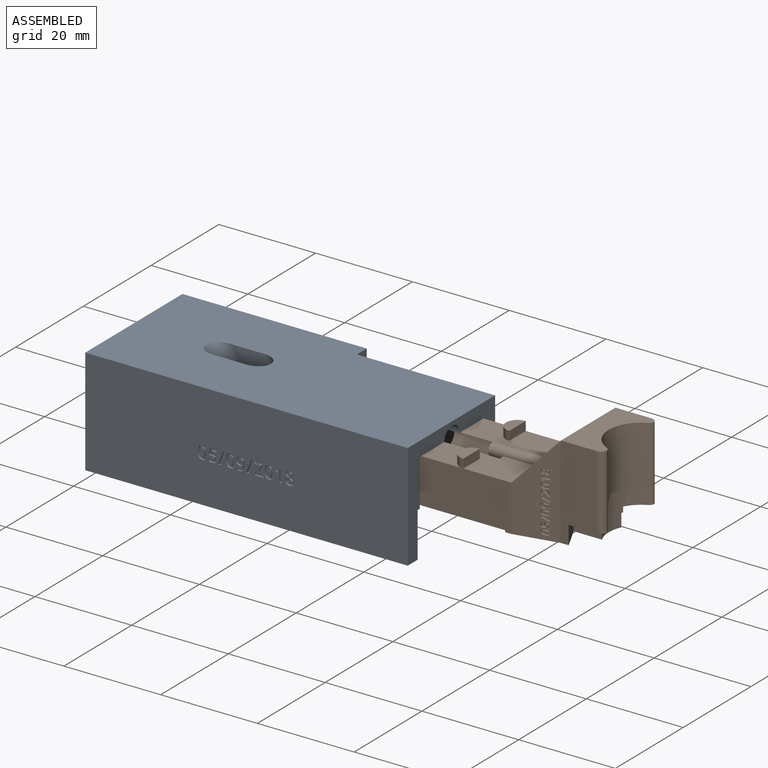
[diagram: assembled view]
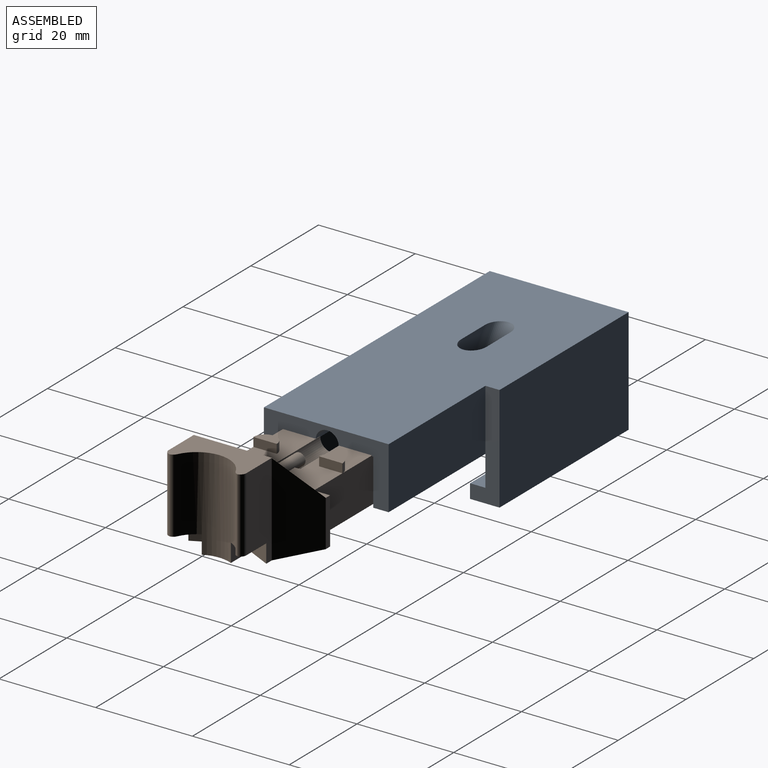
[diagram: assembled view, second angle]
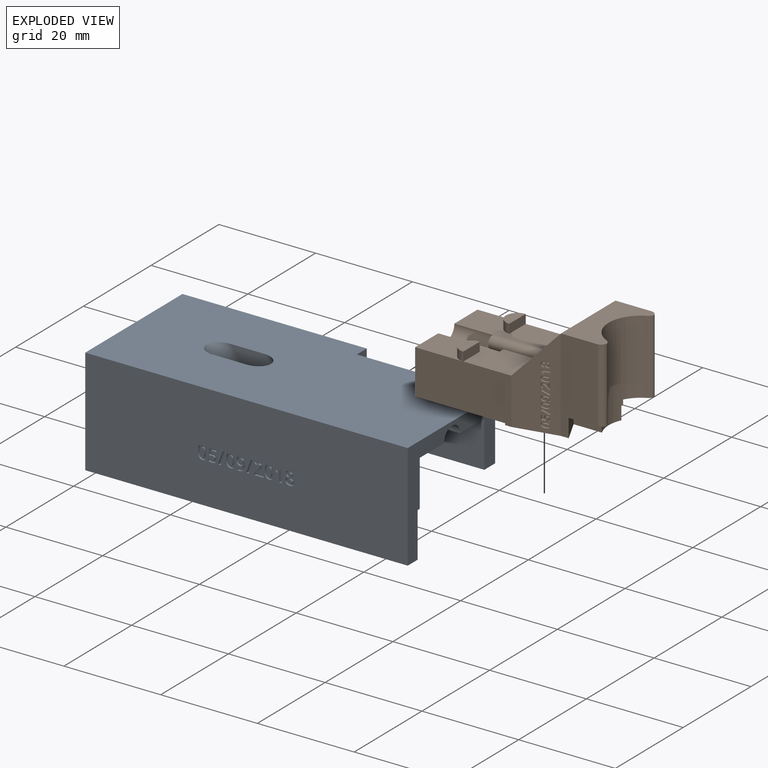
[diagram: exploded view]
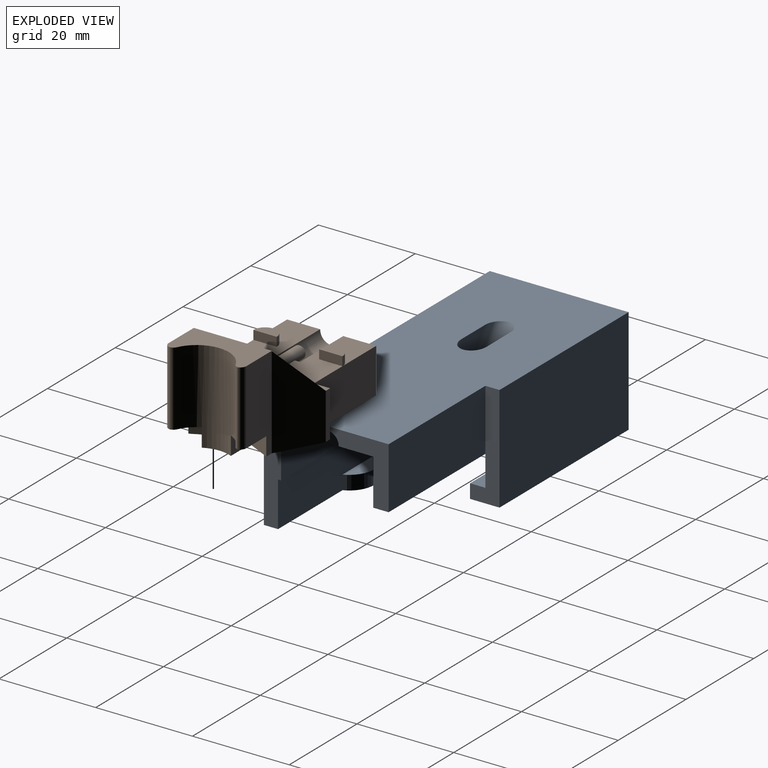
[diagram: exploded view, second angle]
ASSEMBLY  parts=2 mates=3
PART A: 219 faces, bbox 66.7x28.7x23.5 mm
  f0: plane 42.92x2.92mm, normal (0,1,0), area 125.4mm2, adj f1,f4,f32,f218
  f1: plane 47.63x3.18mm, normal (0,0,1), area 147.1mm2, adj f0,f4,f10,f218
  f2: plane 66.68x21.97mm, normal (0,-1,0), area 1434.3mm2, adj f4,f5,f18,f32,f35,f36,f37,f38
  f3: plane 21.97x6.1mm, normal (1,0,0), area 73.5mm2, adj f5,f6,f11,f12,f17,f33,f34
  f4: plane 28.7x21.97mm, normal (-1,0,0), area 437.2mm2, adj f0,f1,f2,f5,f6,f9,f10,f11
  f5: plane 66.68x28.7mm, normal (0,0,1), area 1767.1mm2, adj f2,f3,f4,f13,f14,f15,f16,f17
  f6: plane 38.1x2.92mm, normal (0,-1,0), area 111.3mm2, adj f3,f4,f12,f34
  f7: plane 28.58x8.26mm, normal (0,0,-1), area 89.9mm2, adj f18,f19,f21,f25,f26,f28,f29,f30
  f8: plane 28.58x8.26mm, normal (0,0,-1), area 89.9mm2, adj f18,f20,f21,f22,f23,f28,f29,f30
  f9: plane 66.68x22.86mm, normal (0,0,-1), area 916.6mm2, adj f4,f10,f11,f13,f14,f15,f16,f17
  f10: plane 66.68x9.27mm, normal (0,1,0), area 479mm2, adj f1,f4,f9,f18,f32,f218
  f11: plane 38.1x6.35mm, normal (0,-1,0), area 241.9mm2, adj f3,f4,f9,f12
  f12: plane 38.1x3.18mm, normal (0,0,1), area 121mm2, adj f3,f4,f6,f11
  f13: cylinder r=2.63mm len=15.72mm, axis (0.57,0,-0.82), area 128mm2, adj f5,f9,f14,f16
  f14: plane 15.87x12.7mm, normal (0,1,0), area 88.6mm2, adj f5,f9,f13,f15
  f15: cylinder r=2.63mm len=15.72mm, axis (0.57,0,-0.82), area 128mm2, adj f5,f9,f14,f16
  f16: plane 15.87x12.7mm, normal (0,-1,0), area 88.6mm2, adj f5,f9,f13,f15
  f17: plane 28.58x12.7mm, normal (0,1,0), area 362.9mm2, adj f3,f5,f9,f18
  f18: plane 25.78x21.97mm, normal (1,0,0), area 164.1mm2, adj f2,f5,f7,f8,f9,f10,f17,f19
  f19: plane 28.58x11.56mm, normal (0,-1,0), area 321.2mm2, adj f7,f9,f18,f21,f26,f27
  f20: plane 28.58x11.56mm, normal (0,1,0), area 321.2mm2, adj f8,f9,f18,f21,f23,f24
  f21: plane 19.05x11.56mm, normal (1,0,0), area 199.6mm2, adj f7,f8,f9,f19,f20,f22,f24,f25
  f22: plane 24.13x2.03mm, normal (0,-1,0), area 49mm2, adj f8,f21,f23,f24
  f23: plane 5.08x2.03mm, normal (-1,0,0), area 10.3mm2, adj f8,f20,f22,f24
  f24: plane 24.13x5.08mm, normal (0,0,-1), area 122.6mm2, adj f20,f21,f22,f23
  f25: plane 24.13x2.03mm, normal (0,1,0), area 49mm2, adj f7,f21,f26,f27
  f26: plane 5.08x2.03mm, normal (-1,0,0), area 10.3mm2, adj f7,f19,f25,f27
  f27: plane 24.13x5.08mm, normal (0,0,-1), area 122.6mm2, adj f19,f21,f25,f26
  f28: plane 4.76x2.38mm, normal (1,0,0), area 6.4mm2, adj f7,f8,f29,f30
  f29: cylinder r=2.38mm len=21.08mm, axis (1,0,0), area 157.7mm2, adj f7,f8,f18,f28
  f30: cylinder r=1.27mm len=10.67mm, axis (-1,0,0), area 55.2mm2, adj f7,f8,f21,f28,f31
  f31: plane 2.54x2.54mm, normal (1,0,0), area 5.1mm2, adj f30
  f32: plane 66.68x6.1mm, normal (0,0,-1), area 341.8mm2, adj f0,f2,f4,f10,f18,f218
  f33: plane 38.1x21.97mm, normal (0,1,0), area 837.1mm2, adj f3,f4,f5,f34
  f34: plane 38.1x6.1mm, normal (0,0,-1), area 232.3mm2, adj f3,f4,f6,f33
  f35: extruded ~0.62x0.38mm, area 0.3mm2, adj f2,f36,f54,f55
  f36: extruded ~0.38x0.28mm, area 0.1mm2, adj f2,f35,f37,f55
  f37: plane 0.38x0.06mm, normal (0.2,0,-0.98), area 0mm2, adj f2,f36,f38,f55
  f38: plane 0.53x0.38mm, normal (-1,0,0.09), area 0.2mm2, adj f2,f37,f39,f55
  f39: plane 0.96x0.38mm, normal (0,0,1), area 0.4mm2, adj f2,f38,f40,f55
  f40: plane 0.48x0.38mm, normal (-1,0,0), area 0.2mm2, adj f2,f39,f41,f55
  f41: plane 1.45x0.38mm, normal (0,0,-1), area 0.6mm2, adj f2,f40,f42,f55
  f42: plane 1.36x0.38mm, normal (1,0,-0.07), area 0.5mm2, adj f2,f41,f43,f55
  f43: plane 0.38x0.23mm, normal (0.47,0,0.88), area 0.1mm2, adj f2,f42,f44,f55
  f44: extruded ~0.38x0.19mm, area 0.1mm2, adj f2,f43,f45,f55
  f45: extruded ~0.38x0.21mm, area 0.1mm2, adj f2,f44,f46,f55
  f46: extruded ~0.54x0.4mm, area 0.3mm2, adj f2,f45,f47,f55
  f47: extruded ~0.52x0.42mm, area 0.3mm2, adj f2,f46,f48,f55
  f48: extruded ~0.38x0.36mm, area 0.1mm2, adj f2,f47,f49,f55
  f49: extruded ~0.38x0.34mm, area 0.1mm2, adj f2,f48,f50,f55
  f50: plane 0.49x0.38mm, normal (1,0,0), area 0.2mm2, adj f2,f49,f51,f55
  f51: extruded ~0.72x0.38mm, area 0.3mm2, adj f2,f50,f52,f55
  f52: extruded ~0.79x0.38mm, area 0.3mm2, adj f2,f51,f53,f55
  f53: extruded ~0.69x0.38mm, area 0.3mm2, adj f2,f52,f54,f55
  f54: extruded ~0.6x0.38mm, area 0.3mm2, adj f2,f35,f53,f55
  f55: plane 2.71x1.79mm, normal (0,-1,0), area 2.8mm2, adj f35,f36,f37,f38,f39,f40,f41,f42
  f56: extruded ~0.71x0.38mm, area 0.3mm2, adj f57,f71,f72,f213
  f57: extruded ~0.71x0.38mm, area 0.3mm2, adj f56,f58,f72,f213
  f58: extruded ~0.38x0.29mm, area 0.1mm2, adj f57,f59,f72,f213
  f59: extruded ~0.38x0.28mm, area 0.1mm2, adj f58,f60,f72,f213
  f60: extruded ~0.71x0.38mm, area 0.3mm2, adj f59,f61,f72,f213
  f61: extruded ~0.7x0.38mm, area 0.3mm2, adj f60,f62,f72,f213
  f62: extruded ~0.38x0.29mm, area 0.1mm2, adj f61,f71,f72,f213
  f63: extruded ~1.04x0.38mm, area 0.4mm2, adj f2,f64,f70,f72
  f64: extruded ~1.03x0.38mm, area 0.4mm2, adj f2,f63,f65,f72
  f65: extruded ~0.7x0.38mm, area 0.3mm2, adj f2,f64,f66,f72
  f66: extruded ~0.7x0.38mm, area 0.3mm2, adj f2,f65,f67,f72
  f67: extruded ~1.04x0.38mm, area 0.4mm2, adj f2,f66,f68,f72
  f68: extruded ~1.03x0.38mm, area 0.4mm2, adj f2,f67,f69,f72
  f69: extruded ~0.7x0.38mm, area 0.3mm2, adj f2,f68,f70,f72
  f70: extruded ~0.71x0.38mm, area 0.3mm2, adj f2,f63,f69,f72
  f71: extruded ~0.38x0.29mm, area 0.1mm2, adj f56,f62,f72,f213
  f72: plane 2.75x1.87mm, normal (0,-1,0), area 3.1mm2, adj f56,f57,f58,f59,f60,f61,f62,f63
  f73: extruded ~0.38x0.27mm, area 0.1mm2, adj f74,f98,f99,f214
  f74: extruded ~0.38x0.29mm, area 0.1mm2, adj f73,f75,f99,f214
  f75: extruded ~0.38x0.37mm, area 0.1mm2, adj f74,f76,f99,f214
  f76: extruded ~0.38x0.26mm, area 0.1mm2, adj f75,f77,f99,f214
  f77: extruded ~0.38x0.3mm, area 0.1mm2, adj f76,f78,f99,f214
  f78: extruded ~0.38x0.27mm, area 0.1mm2, adj f77,f79,f99,f214
  f79: extruded ~0.38x0.31mm, area 0.1mm2, adj f78,f98,f99,f214
  f80: extruded ~1.18x0.38mm, area 0.5mm2, adj f2,f81,f97,f99
  f81: extruded ~0.63x0.38mm, area 0.2mm2, adj f2,f80,f82,f99
  f82: extruded ~0.4x0.38mm, area 0.2mm2, adj f2,f81,f83,f99
  f83: extruded ~0.52x0.38mm, area 0.2mm2, adj f2,f82,f84,f99
  f84: extruded ~0.67x0.38mm, area 0.3mm2, adj f2,f83,f85,f99
  f85: extruded ~0.68x0.38mm, area 0.3mm2, adj f2,f84,f86,f99
  f86: extruded ~0.62x0.38mm, area 0.3mm2, adj f2,f85,f87,f99
  f87: extruded ~0.55x0.38mm, area 0.2mm2, adj f2,f86,f88,f99
  f88: extruded ~0.38x0.35mm, area 0.1mm2, adj f2,f87,f89,f99
  f89: extruded ~0.38x0.25mm, area 0.1mm2, adj f2,f88,f90,f99
  f90: plane 0.38x0.02mm, normal (0,0,1), area 0mm2, adj f2,f89,f91,f99
  f91: extruded ~0.49x0.38mm, area 0.2mm2, adj f2,f90,f92,f99
  f92: extruded ~0.38x0.28mm, area 0.1mm2, adj f2,f91,f93,f99
  f93: extruded ~0.47x0.38mm, area 0.2mm2, adj f2,f92,f94,f99
  f94: extruded ~0.38x0.32mm, area 0.1mm2, adj f2,f93,f95,f99
  f95: plane 0.45x0.38mm, normal (1,0,0), area 0.2mm2, adj f2,f94,f96,f99
  f96: extruded ~0.38x0.36mm, area 0.1mm2, adj f2,f95,f97,f99
  f97: extruded ~1.01x0.39mm, area 0.4mm2, adj f2,f80,f96,f99
  f98: extruded ~0.38x0.35mm, area 0.1mm2, adj f73,f79,f99,f214
  f99: plane 2.74x1.89mm, normal (0,-1,0), area 3.1mm2, adj f73,f74,f75,f76,f77,f78,f79,f80
  f100: extruded ~0.71x0.38mm, area 0.3mm2, adj f101,f115,f116,f215
  f101: extruded ~0.71x0.38mm, area 0.3mm2, adj f100,f102,f116,f215
  f102: extruded ~0.38x0.29mm, area 0.1mm2, adj f101,f103,f116,f215
  f103: extruded ~0.38x0.28mm, area 0.1mm2, adj f102,f104,f116,f215
  f104: extruded ~0.71x0.38mm, area 0.3mm2, adj f103,f105,f116,f215
  f105: extruded ~0.7x0.38mm, area 0.3mm2, adj f104,f106,f116,f215
  f106: extruded ~0.38x0.29mm, area 0.1mm2, adj f105,f115,f116,f215
  f107: extruded ~1.04x0.38mm, area 0.4mm2, adj f2,f108,f114,f116
  f108: extruded ~1.03x0.38mm, area 0.4mm2, adj f2,f107,f109,f116
  f109: extruded ~0.7x0.38mm, area 0.3mm2, adj f2,f108,f110,f116
  f110: extruded ~0.7x0.38mm, area 0.3mm2, adj f2,f109,f111,f116
  f111: extruded ~1.04x0.38mm, area 0.4mm2, adj f2,f110,f112,f116
  f112: extruded ~1.03x0.38mm, area 0.4mm2, adj f2,f111,f113,f116
  f113: extruded ~0.7x0.38mm, area 0.3mm2, adj f2,f112,f114,f116
  f114: extruded ~0.71x0.38mm, area 0.3mm2, adj f2,f107,f113,f116
  f115: extruded ~0.38x0.29mm, area 0.1mm2, adj f100,f106,f116,f215
  f116: plane 2.75x1.87mm, normal (0,-1,0), area 3.1mm2, adj f100,f101,f102,f103,f104,f105,f106,f107
  f117: extruded ~0.71x0.38mm, area 0.3mm2, adj f118,f132,f133,f216
  f118: extruded ~0.71x0.38mm, area 0.3mm2, adj f117,f119,f133,f216
  f119: extruded ~0.38x0.29mm, area 0.1mm2, adj f118,f120,f133,f216
  f120: extruded ~0.38x0.28mm, area 0.1mm2, adj f119,f121,f133,f216
  f121: extruded ~0.71x0.38mm, area 0.3mm2, adj f120,f122,f133,f216
  f122: extruded ~0.7x0.38mm, area 0.3mm2, adj f121,f123,f133,f216
  f123: extruded ~0.38x0.29mm, area 0.1mm2, adj f122,f132,f133,f216
  f124: extruded ~1.04x0.38mm, area 0.4mm2, adj f2,f125,f131,f133
  f125: extruded ~1.03x0.38mm, area 0.4mm2, adj f2,f124,f126,f133
  f126: extruded ~0.7x0.38mm, area 0.3mm2, adj f2,f125,f127,f133
  f127: extruded ~0.7x0.38mm, area 0.3mm2, adj f2,f126,f128,f133
  f128: extruded ~1.04x0.38mm, area 0.4mm2, adj f2,f127,f129,f133
  f129: extruded ~1.03x0.38mm, area 0.4mm2, adj f2,f128,f130,f133
  f130: extruded ~0.7x0.38mm, area 0.3mm2, adj f2,f129,f131,f133
  f131: extruded ~0.71x0.38mm, area 0.3mm2, adj f2,f124,f130,f133
  f132: extruded ~0.38x0.29mm, area 0.1mm2, adj f117,f123,f133,f216
  f133: plane 2.75x1.87mm, normal (0,-1,0), area 3.1mm2, adj f117,f118,f119,f120,f121,f122,f123,f124
  f134: plane 0.57x0.38mm, normal (0,0,1), area 0.2mm2, adj f2,f135,f143,f144
  f135: plane 2.68x0.38mm, normal (-1,0,0), area 1mm2, adj f2,f134,f136,f144
  f136: plane 0.47x0.38mm, normal (0,0,-1), area 0.2mm2, adj f2,f135,f137,f144
  f137: plane 0.86x0.69mm, normal (0.62,0,-0.78), area 0.4mm2, adj f2,f136,f138,f144
  f138: plane 0.38x0.34mm, normal (0.78,0,0.63), area 0.2mm2, adj f2,f137,f139,f144
  f139: plane 0.38x0.31mm, normal (-0.63,0,0.78), area 0.2mm2, adj f2,f138,f140,f144
  f140: extruded ~0.38x0.2mm, area 0.1mm2, adj f2,f139,f141,f144
  f141: plane 0.38x0.28mm, normal (1,0,-0.03), area 0.1mm2, adj f2,f140,f142,f144
  f142: plane 0.38x0.25mm, normal (1,0,-0.02), area 0.1mm2, adj f2,f141,f143,f144
  f143: plane 1.55x0.38mm, normal (1,0,0), area 0.6mm2, adj f2,f134,f142,f144
  f144: plane 2.68x1.33mm, normal (0,-1,0), area 1.9mm2, adj f134,f135,f136,f137,f138,f139,f140,f141
  f145: plane 1.87x0.38mm, normal (0,0,1), area 0.7mm2, adj f2,f146,f168,f169
  f146: plane 0.48x0.38mm, normal (-1,0,0), area 0.2mm2, adj f2,f145,f147,f169
  f147: plane 1.17x0.38mm, normal (0,0,-1), area 0.4mm2, adj f2,f146,f148,f169
  f148: plane 0.38x0.03mm, normal (-1,0,0), area 0mm2, adj f2,f147,f149,f169
  f149: plane 0.38x0.34mm, normal (-0.69,0,0.73), area 0.2mm2, adj f2,f148,f150,f169
  f150: extruded ~0.49x0.48mm, area 0.3mm2, adj f2,f149,f151,f169
  f151: extruded ~0.38x0.33mm, area 0.1mm2, adj f2,f150,f152,f169
  f152: extruded ~0.38x0.35mm, area 0.1mm2, adj f2,f151,f153,f169
  f153: extruded ~0.38x0.38mm, area 0.2mm2, adj f2,f152,f154,f169
  f154: extruded ~0.38x0.3mm, area 0.2mm2, adj f2,f153,f155,f169
  f155: extruded ~0.44x0.38mm, area 0.2mm2, adj f2,f154,f156,f169
  f156: extruded ~0.38x0.34mm, area 0.1mm2, adj f2,f155,f157,f169
  f157: extruded ~0.38x0.28mm, area 0.1mm2, adj f2,f156,f158,f169
  f158: extruded ~0.38x0.33mm, area 0.2mm2, adj f2,f157,f159,f169
  f159: plane 0.38x0.36mm, normal (0.76,0,0.65), area 0.2mm2, adj f2,f158,f160,f169
  f160: extruded ~0.38x0.31mm, area 0.1mm2, adj f2,f159,f161,f169
  f161: extruded ~0.38x0.3mm, area 0.1mm2, adj f2,f160,f162,f169
  f162: extruded ~0.38x0.24mm, area 0.1mm2, adj f2,f161,f163,f169
  f163: extruded ~0.38x0.24mm, area 0.1mm2, adj f2,f162,f164,f169
  f164: extruded ~0.38x0.21mm, area 0.1mm2, adj f2,f163,f165,f169
  f165: extruded ~0.38x0.22mm, area 0.1mm2, adj f2,f164,f166,f169
  f166: extruded ~0.42x0.39mm, area 0.2mm2, adj f2,f165,f167,f169
  f167: plane 0.68x0.67mm, normal (0.71,0,-0.7), area 0.4mm2, adj f2,f166,f168,f169
  f168: plane 0.39x0.38mm, normal (1,0,0), area 0.1mm2, adj f2,f145,f167,f169
  f169: plane 2.71x1.88mm, normal (0,-1,0), area 2.7mm2, adj f145,f146,f147,f148,f149,f150,f151,f152
  f170: plane 2.68x1mm, normal (-0.94,0,0.35), area 1.1mm2, adj f2,f171,f173,f174
  f171: plane 0.51x0.38mm, normal (0,0,-1), area 0.2mm2, adj f2,f170,f172,f174
  f172: plane 2.68x1mm, normal (0.94,0,-0.35), area 1.1mm2, adj f2,f171,f173,f174
  f173: plane 0.51x0.38mm, normal (0,0,1), area 0.2mm2, adj f2,f170,f172,f174
  f174: plane 2.68x1.5mm, normal (0,-1,0), area 1.4mm2, adj f170,f171,f172,f173
  f175: plane 2.68x1mm, normal (-0.94,0,0.35), area 1.1mm2, adj f2,f176,f178,f179
  f176: plane 0.51x0.38mm, normal (0,0,-1), area 0.2mm2, adj f2,f175,f177,f179
  f177: plane 2.68x1mm, normal (0.94,0,-0.35), area 1.1mm2, adj f2,f176,f178,f179
  f178: plane 0.51x0.38mm, normal (0,0,1), area 0.2mm2, adj f2,f175,f177,f179
  f179: plane 2.68x1.5mm, normal (0,-1,0), area 1.4mm2, adj f175,f176,f177,f178
  f180: extruded ~0.38x0.23mm, area 0.1mm2, adj f181,f210,f211,f217
  f181: extruded ~0.38x0.23mm, area 0.1mm2, adj f180,f182,f211,f217
  f182: extruded ~0.38x0.2mm, area 0.1mm2, adj f181,f183,f211,f217
  f183: extruded ~0.38x0.2mm, area 0.1mm2, adj f182,f184,f211,f217
  f184: extruded ~0.38x0.25mm, area 0.1mm2, adj f183,f185,f211,f217
  f185: extruded ~0.38x0.26mm, area 0.1mm2, adj f184,f186,f211,f217
  f186: extruded ~0.38x0.2mm, area 0.1mm2, adj f185,f210,f211,f217
  f187: extruded ~0.38x0.25mm, area 0.1mm2, adj f188,f208,f211,f212
  f188: extruded ~0.45x0.39mm, area 0.2mm2, adj f187,f189,f211,f212
  f189: extruded ~0.38x0.34mm, area 0.2mm2, adj f188,f190,f211,f212
  f190: extruded ~0.38x0.23mm, area 0.1mm2, adj f189,f191,f211,f212
  f191: extruded ~0.38x0.24mm, area 0.1mm2, adj f190,f192,f211,f212
  f192: extruded ~0.38x0.31mm, area 0.1mm2, adj f191,f208,f211,f212
  f193: extruded ~0.62x0.38mm, area 0.2mm2, adj f2,f194,f209,f211
  f194: extruded ~0.62x0.38mm, area 0.3mm2, adj f2,f193,f195,f211
  f195: extruded ~0.47x0.38mm, area 0.2mm2, adj f2,f194,f196,f211
  f196: extruded ~0.38x0.36mm, area 0.1mm2, adj f2,f195,f197,f211
  f197: extruded ~0.38x0.33mm, area 0.2mm2, adj f2,f196,f198,f211
  f198: extruded ~0.39x0.38mm, area 0.2mm2, adj f2,f197,f199,f211
  f199: extruded ~0.41x0.38mm, area 0.2mm2, adj f2,f198,f200,f211
  f200: extruded ~0.53x0.38mm, area 0.2mm2, adj f2,f199,f201,f211
  f201: extruded ~0.69x0.38mm, area 0.3mm2, adj f2,f200,f202,f211
  f202: extruded ~0.68x0.38mm, area 0.3mm2, adj f2,f201,f203,f211
  f203: extruded ~0.53x0.38mm, area 0.2mm2, adj f2,f202,f204,f211
  f204: extruded ~0.38x0.38mm, area 0.2mm2, adj f2,f203,f205,f211
  f205: extruded ~0.43x0.38mm, area 0.2mm2, adj f2,f204,f206,f211
  f206: extruded ~0.38x0.37mm, area 0.2mm2, adj f2,f205,f207,f211
  f207: extruded ~0.38x0.37mm, area 0.1mm2, adj f2,f206,f209,f211
  f208: extruded ~0.38x0.3mm, area 0.1mm2, adj f187,f192,f211,f212
  f209: extruded ~0.47x0.38mm, area 0.2mm2, adj f2,f193,f207,f211
  f210: extruded ~0.38x0.2mm, area 0.1mm2, adj f180,f186,f211,f217
  f211: plane 2.75x1.88mm, normal (0,-1,0), area 3.3mm2, adj f180,f181,f182,f183,f184,f185,f186,f187
  f212: plane 0.83x0.79mm, normal (0,-1,0), area 0.5mm2, adj f187,f188,f189,f190,f191,f192,f208
  f213: plane 1.84x0.74mm, normal (0,-1,0), area 1.2mm2, adj f56,f57,f58,f59,f60,f61,f62,f71
  f214: plane 0.89x0.78mm, normal (0,-1,0), area 0.6mm2, adj f73,f74,f75,f76,f77,f78,f79,f98
  f215: plane 1.84x0.74mm, normal (0,-1,0), area 1.2mm2, adj f100,f101,f102,f103,f104,f105,f106,f115
  f216: plane 1.84x0.74mm, normal (0,-1,0), area 1.2mm2, adj f117,f118,f119,f120,f121,f122,f123,f132
  f217: plane 0.65x0.65mm, normal (0,-1,0), area 0.3mm2, adj f180,f181,f182,f183,f184,f185,f186,f210
  f218: cylinder r=5.08mm len=4.71mm, axis (0,0,-1), area 17.6mm2, adj f0,f1,f10,f32
PART B: 222 faces, bbox 38x22.9x19.2 mm
  f0: plane 19.11x8.93mm, normal (0.2,-0.98,0), area 118.8mm2, adj f1,f9,f10,f23,f39,f40,f41,f42
  f1: plane 19.15x7.48mm, normal (0,-1,0), area 121mm2, adj f0,f3,f9,f20,f22,f23,f35
  f2: cylinder r=6.69mm len=19.15mm, axis (0,0,-1), area 255.4mm2, adj f3,f9,f17,f19,f21,f22,f36,f38
  f3: plane 16.09x8.7mm, normal (0,0,1), area 96.8mm2, adj f1,f2,f11,f23,f35,f36,f37,f38
  f4: plane 19.05x7.94mm, normal (0,0,1), area 127.9mm2, adj f6,f15,f16,f27,f28,f30,f31,f33
  f5: plane 19.05x7.94mm, normal (0,0,1), area 128mm2, adj f8,f14,f16,f24,f25,f30,f31,f33
  f6: plane 9.58x8.63mm, normal (-1,0,0), area 9mm2, adj f4,f7,f9,f10,f15,f33
  f7: plane 22.86x1.27mm, normal (0,0,1), area 26.7mm2, adj f6,f8,f10,f13,f23,f32,f33
  f8: plane 11.8x9.58mm, normal (-1,0,0), area 39.4mm2, adj f5,f7,f9,f13,f14,f33
  f9: plane 34.19x22.86mm, normal (0,0,-1), area 583.6mm2, adj f0,f1,f2,f6,f8,f10,f11,f12
  f10: plane 9.58x1.27mm, normal (0,-1,0), area 12.2mm2, adj f0,f6,f7,f9
  f11: plane 19.15x7.48mm, normal (0,1,0), area 121mm2, adj f3,f9,f12,f18,f19,f23,f37
  f12: plane 19.11x8.93mm, normal (0.48,0.88,0), area 146.2mm2, adj f9,f11,f13,f23
  f13: plane 9.58x1.27mm, normal (0,1,0), area 12.2mm2, adj f7,f8,f9,f12
  f14: plane 19.05x9.21mm, normal (0,1,0), area 175.4mm2, adj f5,f8,f9,f16
  f15: plane 19.05x11.06mm, normal (0,-1,0), area 175.5mm2, adj f4,f6,f9,f16,f27,f28,f29
  f16: plane 18.42x9.21mm, normal (-1,0,0), area 160.6mm2, adj f4,f5,f9,f14,f15,f30
  f17: plane 5.73x3.81mm, normal (0,1,0), area 21.8mm2, adj f2,f9,f18,f19
  f18: plane 5.08x3.81mm, normal (0.89,-0.45,0), area 21.6mm2, adj f9,f11,f17,f19
  f19: plane 9.62x5.08mm, normal (0,0,-1), area 33.4mm2, adj f2,f11,f17,f18,f37,f38
  f20: plane 5.08x3.81mm, normal (0.89,0.45,0), area 21.6mm2, adj f1,f9,f21,f22
  f21: plane 5.84x3.81mm, normal (0,-1,0), area 22.3mm2, adj f2,f9,f20,f22
  f22: plane 9.64x5.08mm, normal (0,0,-1), area 34.2mm2, adj f1,f2,f20,f21,f35,f36
  f23: plane 22.86x9.58mm, normal (-0.73,0,0.68), area 255.3mm2, adj f0,f1,f3,f7,f11,f12
  f24: plane 4.83x1.85mm, normal (1,-0.01,0), area 8.9mm2, adj f5,f25,f26
  f25: cylinder r=2.41mm len=4.83mm, axis (0,0,-1), area 14mm2, adj f5,f24,f26
  f26: plane 4.83x2.41mm, normal (0,0,1), area 9.1mm2, adj f24,f25
  f27: plane 4.83x1.85mm, normal (1,0,0), area 8.9mm2, adj f4,f15,f28,f29
  f28: cylinder r=2.41mm len=4.83mm, axis (0,0,-1), area 14.1mm2, adj f4,f15,f27,f29
  f29: plane 4.83x2.43mm, normal (0,0,1), area 9.2mm2, adj f15,f27,f28
  f30: cylinder r=2.38mm len=12.7mm, axis (-1,0,0), area 95mm2, adj f4,f5,f16,f31
  f31: plane 4.76x2.38mm, normal (-1,0,0), area 6.4mm2, adj f4,f5,f30,f33
  f32: plane 2.43x0.9mm, normal (1,0,0), area 1.6mm2, adj f7,f33
  f33: cylinder r=1.27mm len=10.47mm, axis (1,0,0), area 53.7mm2, adj f4,f5,f6,f7,f8,f31,f32,f34
  f34: plane 2.54x2.54mm, normal (-1,0,0), area 5.1mm2, adj f33
  f35: cylinder r=1.27mm len=15.34mm, axis (0,0,1), area 28.2mm2, adj f1,f3,f22,f36
  f36: cylinder r=1.27mm len=15.34mm, axis (0,0,-1), area 19.6mm2, adj f2,f3,f22,f35
  f37: cylinder r=1.27mm len=15.34mm, axis (0,0,1), area 26.4mm2, adj f3,f11,f19,f38
  f38: cylinder r=1.27mm len=15.34mm, axis (0,0,-1), area 17.8mm2, adj f2,f3,f19,f37
  f39: extruded ~0.4x0.39mm, area 0.2mm2, adj f0,f40,f58,f59
  f40: extruded ~0.38x0.17mm, area 0.1mm2, adj f0,f39,f41,f59
  f41: plane 0.37x0.09mm, normal (0.96,0.2,0.2), area 0mm2, adj f0,f40,f42,f59
  f42: plane 0.44x0.4mm, normal (-0.09,-0.02,-1), area 0.1mm2, adj f0,f41,f43,f59
  f43: plane 0.6x0.37mm, normal (-0.98,-0.2,0), area 0.2mm2, adj f0,f42,f44,f59
  f44: plane 0.43x0.37mm, normal (0,0,-1), area 0.1mm2, adj f0,f43,f45,f59
  f45: plane 0.91x0.37mm, normal (0.98,0.2,0), area 0.3mm2, adj f0,f44,f46,f59
  f46: plane 0.91x0.55mm, normal (0.07,0.02,1), area 0.3mm2, adj f0,f45,f47,f59
  f47: plane 0.39x0.15mm, normal (-0.86,-0.18,0.47), area 0.1mm2, adj f0,f46,f48,f59
  f48: extruded ~0.38x0.12mm, area 0mm2, adj f0,f47,f49,f59
  f49: extruded ~0.38x0.13mm, area 0.1mm2, adj f0,f48,f50,f59
  f50: extruded ~0.42x0.34mm, area 0.2mm2, adj f0,f49,f51,f59
  f51: extruded ~0.43x0.34mm, area 0.2mm2, adj f0,f50,f52,f59
  f52: extruded ~0.38x0.23mm, area 0.1mm2, adj f0,f51,f53,f59
  f53: extruded ~0.39x0.21mm, area 0.1mm2, adj f0,f52,f54,f59
  f54: plane 0.44x0.38mm, normal (0,0,1), area 0.1mm2, adj f0,f53,f55,f59
  f55: extruded ~0.45x0.39mm, area 0.2mm2, adj f0,f54,f56,f59
  f56: extruded ~0.49x0.4mm, area 0.2mm2, adj f0,f55,f57,f59
  f57: extruded ~0.5x0.46mm, area 0.2mm2, adj f0,f56,f58,f59
  f58: extruded ~0.45x0.44mm, area 0.2mm2, adj f0,f39,f57,f59
  f59: plane 1.66x1.12mm, normal (0.2,-0.98,0), area 1.1mm2, adj f39,f40,f41,f42,f43,f44,f45,f46
  f60: extruded ~0.51x0.46mm, area 0.2mm2, adj f61,f75,f76,f217
  f61: extruded ~0.51x0.46mm, area 0.2mm2, adj f60,f62,f76,f217
  f62: extruded ~0.4x0.21mm, area 0.1mm2, adj f61,f63,f76,f217
  f63: extruded ~0.4x0.21mm, area 0.1mm2, adj f62,f64,f76,f217
  f64: extruded ~0.51x0.46mm, area 0.2mm2, adj f63,f65,f76,f217
  f65: extruded ~0.51x0.46mm, area 0.2mm2, adj f64,f66,f76,f217
  f66: extruded ~0.4x0.21mm, area 0.1mm2, adj f65,f75,f76,f217
  f67: extruded ~0.71x0.51mm, area 0.3mm2, adj f0,f68,f74,f76
  f68: extruded ~0.71x0.5mm, area 0.3mm2, adj f0,f67,f69,f76
  f69: extruded ~0.44x0.42mm, area 0.2mm2, adj f0,f68,f70,f76
  f70: extruded ~0.44x0.42mm, area 0.2mm2, adj f0,f69,f71,f76
  f71: extruded ~0.72x0.51mm, area 0.3mm2, adj f0,f70,f72,f76
  f72: extruded ~0.71x0.5mm, area 0.3mm2, adj f0,f71,f73,f76
  f73: extruded ~0.44x0.42mm, area 0.2mm2, adj f0,f72,f74,f76
  f74: extruded ~0.44x0.42mm, area 0.2mm2, adj f0,f67,f73,f76
  f75: extruded ~0.4x0.21mm, area 0.1mm2, adj f60,f66,f76,f217
  f76: plane 1.69x1.17mm, normal (0.2,-0.98,0), area 1.2mm2, adj f60,f61,f62,f63,f64,f65,f66,f67
  f77: extruded ~0.39x0.17mm, area 0.1mm2, adj f78,f102,f103,f218
  f78: extruded ~0.39x0.18mm, area 0.1mm2, adj f77,f79,f103,f218
  f79: extruded ~0.42x0.3mm, area 0.1mm2, adj f78,f80,f103,f218
  f80: extruded ~0.41x0.24mm, area 0.1mm2, adj f79,f81,f103,f218
  f81: extruded ~0.39x0.18mm, area 0.1mm2, adj f80,f82,f103,f218
  f82: extruded ~0.39x0.17mm, area 0.1mm2, adj f81,f83,f103,f218
  f83: extruded ~0.41x0.27mm, area 0.1mm2, adj f82,f102,f103,f218
  f84: extruded ~0.8x0.52mm, area 0.3mm2, adj f0,f85,f101,f103
  f85: extruded ~0.46x0.45mm, area 0.2mm2, adj f0,f84,f86,f103
  f86: extruded ~0.42x0.32mm, area 0.1mm2, adj f0,f85,f87,f103
  f87: extruded ~0.39x0.32mm, area 0.1mm2, adj f0,f86,f88,f103
  f88: extruded ~0.42x0.4mm, area 0.2mm2, adj f0,f87,f89,f103
  f89: extruded ~0.49x0.46mm, area 0.2mm2, adj f0,f88,f90,f103
  f90: extruded ~0.46x0.45mm, area 0.2mm2, adj f0,f89,f91,f103
  f91: extruded ~0.4x0.34mm, area 0.1mm2, adj f0,f90,f92,f103
  f92: extruded ~0.38x0.22mm, area 0.1mm2, adj f0,f91,f93,f103
  f93: extruded ~0.4x0.23mm, area 0.1mm2, adj f0,f92,f94,f103
  f94: plane 0.37x0.08mm, normal (-0.98,-0.2,0), area 0mm2, adj f0,f93,f95,f103
  f95: extruded ~0.44x0.38mm, area 0.1mm2, adj f0,f94,f96,f103
  f96: extruded ~0.41x0.24mm, area 0.1mm2, adj f0,f95,f97,f103
  f97: extruded ~0.38x0.29mm, area 0.1mm2, adj f0,f96,f98,f103
  f98: extruded ~0.38x0.2mm, area 0.1mm2, adj f0,f97,f99,f103
  f99: plane 0.43x0.36mm, normal (0,0,1), area 0.1mm2, adj f0,f98,f100,f103
  f100: extruded ~0.38x0.23mm, area 0.1mm2, adj f0,f99,f101,f103
  f101: extruded ~0.63x0.42mm, area 0.3mm2, adj f0,f84,f100,f103
  f102: extruded ~0.42x0.29mm, area 0.1mm2, adj f77,f83,f103,f218
  f103: plane 1.68x1.18mm, normal (0.2,-0.98,0), area 1.2mm2, adj f77,f78,f79,f80,f81,f82,f83,f84
  f104: extruded ~0.51x0.46mm, area 0.2mm2, adj f105,f119,f120,f219
  f105: extruded ~0.51x0.46mm, area 0.2mm2, adj f104,f106,f120,f219
  f106: extruded ~0.4x0.21mm, area 0.1mm2, adj f105,f107,f120,f219
  f107: extruded ~0.4x0.21mm, area 0.1mm2, adj f106,f108,f120,f219
  f108: extruded ~0.51x0.46mm, area 0.2mm2, adj f107,f109,f120,f219
  f109: extruded ~0.51x0.46mm, area 0.2mm2, adj f108,f110,f120,f219
  f110: extruded ~0.4x0.21mm, area 0.1mm2, adj f109,f119,f120,f219
  f111: extruded ~0.71x0.51mm, area 0.3mm2, adj f0,f112,f118,f120
  f112: extruded ~0.71x0.5mm, area 0.3mm2, adj f0,f111,f113,f120
  f113: extruded ~0.44x0.42mm, area 0.2mm2, adj f0,f112,f114,f120
  f114: extruded ~0.44x0.42mm, area 0.2mm2, adj f0,f113,f115,f120
  f115: extruded ~0.72x0.51mm, area 0.3mm2, adj f0,f114,f116,f120
  f116: extruded ~0.71x0.5mm, area 0.3mm2, adj f0,f115,f117,f120
  f117: extruded ~0.44x0.42mm, area 0.2mm2, adj f0,f116,f118,f120
  f118: extruded ~0.44x0.42mm, area 0.2mm2, adj f0,f111,f117,f120
  f119: extruded ~0.4x0.21mm, area 0.1mm2, adj f104,f110,f120,f219
  f120: plane 1.69x1.17mm, normal (0.2,-0.98,0), area 1.2mm2, adj f104,f105,f106,f107,f108,f109,f110,f111
  f121: extruded ~0.51x0.46mm, area 0.2mm2, adj f122,f136,f137,f220
  f122: extruded ~0.51x0.46mm, area 0.2mm2, adj f121,f123,f137,f220
  f123: extruded ~0.4x0.21mm, area 0.1mm2, adj f122,f124,f137,f220
  f124: extruded ~0.4x0.21mm, area 0.1mm2, adj f123,f125,f137,f220
  f125: extruded ~0.51x0.46mm, area 0.2mm2, adj f124,f126,f137,f220
  f126: extruded ~0.51x0.46mm, area 0.2mm2, adj f125,f127,f137,f220
  f127: extruded ~0.4x0.21mm, area 0.1mm2, adj f126,f136,f137,f220
  f128: extruded ~0.71x0.51mm, area 0.3mm2, adj f0,f129,f135,f137
  f129: extruded ~0.71x0.5mm, area 0.3mm2, adj f0,f128,f130,f137
  f130: extruded ~0.44x0.42mm, area 0.2mm2, adj f0,f129,f131,f137
  f131: extruded ~0.44x0.42mm, area 0.2mm2, adj f0,f130,f132,f137
  f132: extruded ~0.72x0.51mm, area 0.3mm2, adj f0,f131,f133,f137
  f133: extruded ~0.71x0.5mm, area 0.3mm2, adj f0,f132,f134,f137
  f134: extruded ~0.44x0.42mm, area 0.2mm2, adj f0,f133,f135,f137
  f135: extruded ~0.44x0.42mm, area 0.2mm2, adj f0,f128,f134,f137
  f136: extruded ~0.4x0.21mm, area 0.1mm2, adj f121,f127,f137,f220
  f137: plane 1.69x1.17mm, normal (0.2,-0.98,0), area 1.2mm2, adj f121,f122,f123,f124,f125,f126,f127,f128
  f138: plane 0.37x0.35mm, normal (-0.98,-0.2,0), area 0.1mm2, adj f0,f139,f147,f148
  f139: plane 1.71x0.71mm, normal (0,0,-1), area 0.6mm2, adj f0,f138,f140,f148
  f140: plane 0.37x0.29mm, normal (0.98,0.2,0), area 0.1mm2, adj f0,f139,f141,f148
  f141: plane 0.54x0.5mm, normal (0.77,0.16,0.62), area 0.3mm2, adj f0,f140,f142,f148
  f142: plane 0.42x0.29mm, normal (-0.61,-0.13,0.78), area 0.1mm2, adj f0,f141,f143,f148
  f143: plane 0.4x0.23mm, normal (-0.76,-0.16,-0.63), area 0.1mm2, adj f0,f142,f144,f148
  f144: extruded ~0.4x0.19mm, area 0.1mm2, adj f0,f143,f145,f148
  f145: plane 0.41x0.25mm, normal (0.03,0.01,1), area 0.1mm2, adj f0,f144,f146,f148
  f146: plane 0.41x0.23mm, normal (0.02,0,1), area 0.1mm2, adj f0,f145,f147,f148
  f147: plane 1.03x0.57mm, normal (0,0,1), area 0.4mm2, adj f0,f138,f146,f148
  f148: plane 1.64x0.83mm, normal (0.2,-0.98,0), area 0.7mm2, adj f138,f139,f140,f141,f142,f143,f144,f145
  f149: plane 1.17x0.37mm, normal (-0.98,-0.2,0), area 0.4mm2, adj f0,f150,f172,f173
  f150: plane 0.43x0.37mm, normal (0,0,-1), area 0.1mm2, adj f0,f149,f151,f173
  f151: plane 0.73x0.37mm, normal (0.98,0.2,0), area 0.3mm2, adj f0,f150,f152,f173
  f152: plane 0.38x0.09mm, normal (0,0,-1), area 0mm2, adj f0,f151,f153,f173
  f153: plane 0.41x0.28mm, normal (-0.71,-0.15,-0.69), area 0.1mm2, adj f0,f152,f154,f173
  f154: extruded ~0.43x0.37mm, area 0.2mm2, adj f0,f153,f155,f173
  f155: extruded ~0.42x0.28mm, area 0.1mm2, adj f0,f154,f156,f173
  f156: extruded ~0.42x0.29mm, area 0.1mm2, adj f0,f155,f157,f173
  f157: extruded ~0.42x0.31mm, area 0.1mm2, adj f0,f156,f158,f173
  f158: extruded ~0.41x0.23mm, area 0.1mm2, adj f0,f157,f159,f173
  f159: extruded ~0.38x0.28mm, area 0.1mm2, adj f0,f158,f160,f173
  f160: extruded ~0.38x0.22mm, area 0.1mm2, adj f0,f159,f161,f173
  f161: extruded ~0.39x0.18mm, area 0.1mm2, adj f0,f160,f162,f173
  f162: extruded ~0.4x0.22mm, area 0.1mm2, adj f0,f161,f163,f173
  f163: plane 0.42x0.3mm, normal (-0.63,-0.13,0.76), area 0.1mm2, adj f0,f162,f164,f173
  f164: extruded ~0.4x0.2mm, area 0.1mm2, adj f0,f163,f165,f173
  f165: extruded ~0.38x0.19mm, area 0.1mm2, adj f0,f164,f166,f173
  f166: extruded ~0.38x0.15mm, area 0.1mm2, adj f0,f165,f167,f173
  f167: extruded ~0.4x0.22mm, area 0.1mm2, adj f0,f166,f168,f173
  f168: extruded ~0.4x0.21mm, area 0.1mm2, adj f0,f167,f169,f173
  f169: extruded ~0.4x0.21mm, area 0.1mm2, adj f0,f168,f170,f173
  f170: extruded ~0.43x0.34mm, area 0.1mm2, adj f0,f169,f171,f173
  f171: plane 0.49x0.46mm, normal (0.69,0.14,0.71), area 0.2mm2, adj f0,f170,f172,f173
  f172: plane 0.42x0.32mm, normal (0,0,1), area 0.1mm2, adj f0,f149,f171,f173
  f173: plane 1.66x1.17mm, normal (0.2,-0.98,0), area 1mm2, adj f149,f150,f151,f152,f153,f154,f155,f156
  f174: plane 1.71x0.71mm, normal (-0.34,-0.07,-0.94), area 0.7mm2, adj f0,f175,f177,f178
  f175: plane 0.37x0.32mm, normal (0.98,0.2,0), area 0.1mm2, adj f0,f174,f176,f178
  f176: plane 1.71x0.71mm, normal (0.34,0.07,0.94), area 0.7mm2, adj f0,f175,f177,f178
  f177: plane 0.37x0.32mm, normal (-0.98,-0.2,0), area 0.1mm2, adj f0,f174,f176,f178
  f178: plane 1.64x0.94mm, normal (0.2,-0.98,0), area 0.5mm2, adj f174,f175,f176,f177
  f179: plane 1.71x0.71mm, normal (-0.34,-0.07,-0.94), area 0.7mm2, adj f0,f180,f182,f183
  f180: plane 0.37x0.32mm, normal (0.98,0.2,0), area 0.1mm2, adj f0,f179,f181,f183
  f181: plane 1.71x0.71mm, normal (0.34,0.07,0.94), area 0.7mm2, adj f0,f180,f182,f183
  f182: plane 0.37x0.32mm, normal (-0.98,-0.2,0), area 0.1mm2, adj f0,f179,f181,f183
  f183: plane 1.64x0.94mm, normal (0.2,-0.98,0), area 0.5mm2, adj f179,f180,f181,f182
  f184: extruded ~0.38x0.15mm, area 0.1mm2, adj f185,f214,f215,f221
  f185: extruded ~0.38x0.15mm, area 0.1mm2, adj f184,f186,f215,f221
  f186: extruded ~0.4x0.2mm, area 0.1mm2, adj f185,f187,f215,f221
  f187: extruded ~0.4x0.2mm, area 0.1mm2, adj f186,f188,f215,f221
  f188: extruded ~0.4x0.18mm, area 0.1mm2, adj f187,f189,f215,f221
  f189: extruded ~0.4x0.19mm, area 0.1mm2, adj f188,f190,f215,f221
  f190: extruded ~0.4x0.2mm, area 0.1mm2, adj f189,f214,f215,f221
  f191: extruded ~0.4x0.23mm, area 0.1mm2, adj f192,f212,f215,f216
  f192: extruded ~0.43x0.36mm, area 0.2mm2, adj f191,f193,f215,f216
  f193: extruded ~0.4x0.22mm, area 0.1mm2, adj f192,f194,f215,f216
  f194: extruded ~0.4x0.22mm, area 0.1mm2, adj f193,f195,f215,f216
  f195: extruded ~0.4x0.22mm, area 0.1mm2, adj f194,f196,f215,f216
  f196: extruded ~0.38x0.2mm, area 0.1mm2, adj f195,f212,f215,f216
  f197: extruded ~0.4x0.39mm, area 0.2mm2, adj f0,f198,f213,f215
  f198: extruded ~0.4x0.39mm, area 0.2mm2, adj f0,f197,f199,f215
  f199: extruded ~0.43x0.36mm, area 0.1mm2, adj f0,f198,f200,f215
  f200: extruded ~0.42x0.3mm, area 0.1mm2, adj f0,f199,f201,f215
  f201: extruded ~0.41x0.27mm, area 0.1mm2, adj f0,f200,f202,f215
  f202: extruded ~0.41x0.27mm, area 0.1mm2, adj f0,f201,f203,f215
  f203: extruded ~0.42x0.33mm, area 0.1mm2, adj f0,f202,f204,f215
  f204: extruded ~0.44x0.4mm, area 0.1mm2, adj f0,f203,f205,f215
  f205: extruded ~0.43x0.4mm, area 0.2mm2, adj f0,f204,f206,f215
  f206: extruded ~0.42x0.4mm, area 0.2mm2, adj f0,f205,f207,f215
  f207: extruded ~0.44x0.4mm, area 0.1mm2, adj f0,f206,f208,f215
  f208: extruded ~0.42x0.31mm, area 0.1mm2, adj f0,f207,f209,f215
  f209: extruded ~0.42x0.28mm, area 0.1mm2, adj f0,f208,f210,f215
  f210: extruded ~0.41x0.25mm, area 0.1mm2, adj f0,f209,f211,f215
  f211: extruded ~0.42x0.3mm, area 0.1mm2, adj f0,f210,f213,f215
  f212: extruded ~0.38x0.19mm, area 0.1mm2, adj f191,f196,f215,f216
  f213: extruded ~0.43x0.37mm, area 0.1mm2, adj f0,f197,f211,f215
  f214: extruded ~0.4x0.2mm, area 0.1mm2, adj f184,f190,f215,f221
  f215: plane 1.68x1.17mm, normal (0.2,-0.98,0), area 1.3mm2, adj f184,f185,f186,f187,f188,f189,f190,f191
  f216: plane 0.52x0.48mm, normal (0.2,-0.98,0), area 0.2mm2, adj f191,f192,f193,f194,f195,f196,f212
  f217: plane 1.13x0.47mm, normal (0.2,-0.98,0), area 0.5mm2, adj f60,f61,f62,f63,f64,f65,f66,f75
  f218: plane 0.54x0.49mm, normal (0.2,-0.98,0), area 0.2mm2, adj f77,f78,f79,f80,f81,f82,f83,f102
  f219: plane 1.13x0.47mm, normal (0.2,-0.98,0), area 0.5mm2, adj f104,f105,f106,f107,f108,f109,f110,f119
  f220: plane 1.13x0.47mm, normal (0.2,-0.98,0), area 0.5mm2, adj f121,f122,f123,f124,f125,f126,f127,f136
  f221: plane 0.4x0.4mm, normal (0.2,-0.98,0), area 0.1mm2, adj f184,f185,f186,f187,f188,f189,f190,f214
PLACE A t=(0,29.21,12.7)mm
PLACE B t=(34.99,-40.92,13.2)mm
MATE parallel B.f7 <-> A.f5  axis (0,0,1) through (85.14,18.3,22.77)mm
MATE slider A.f21 <-> B.f24  axis (1,0,0) through (38.1,20.95,24.26)mm
MATE parallel B.f14 <-> A.f19  axis (0,1,0) through (74.97,25.78,17.8)mm
